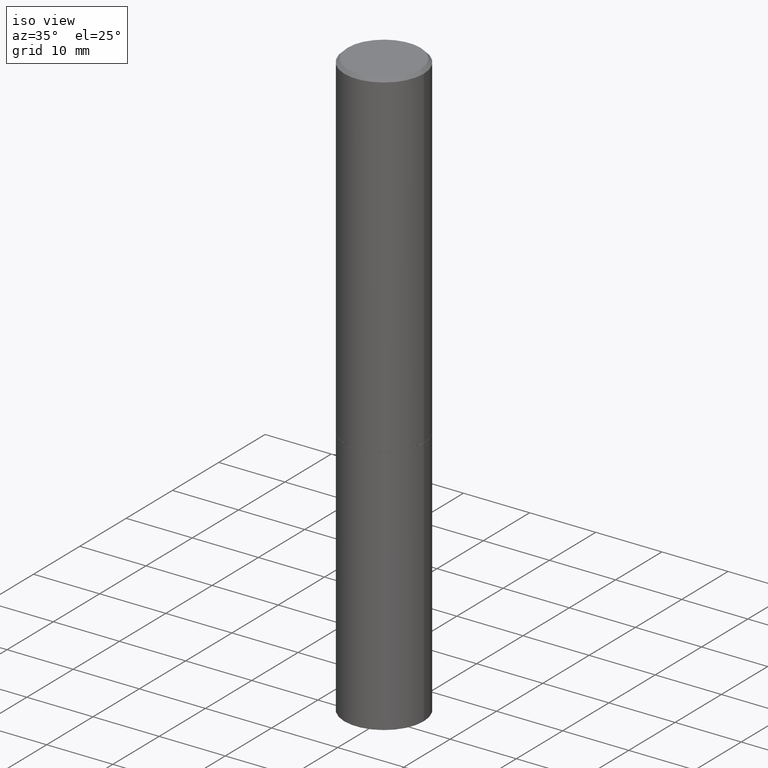
[diagram: clean part render]
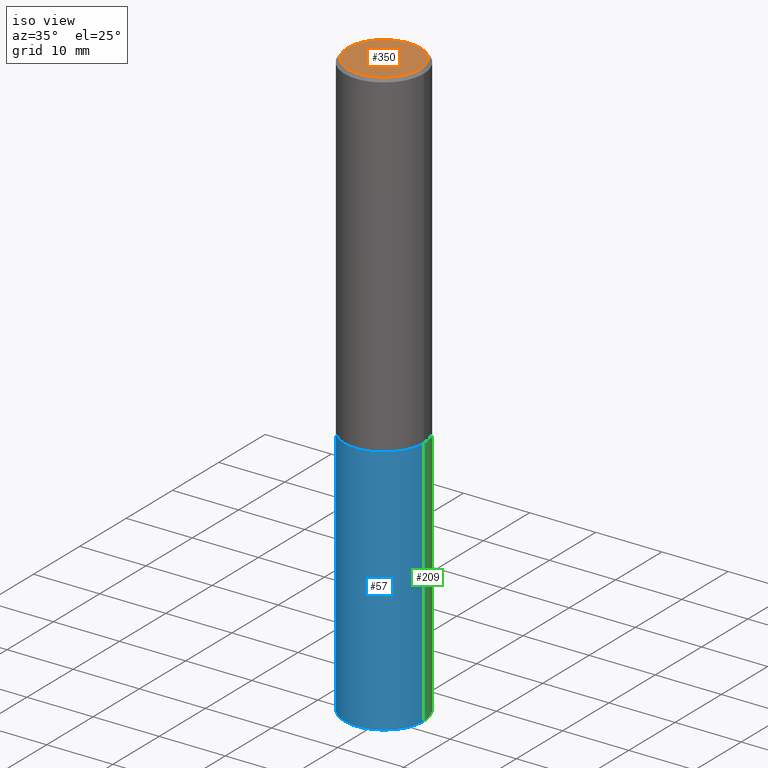
[diagram: same view with three faces highlighted in distinct colors, each labeled with its STEP entity id]
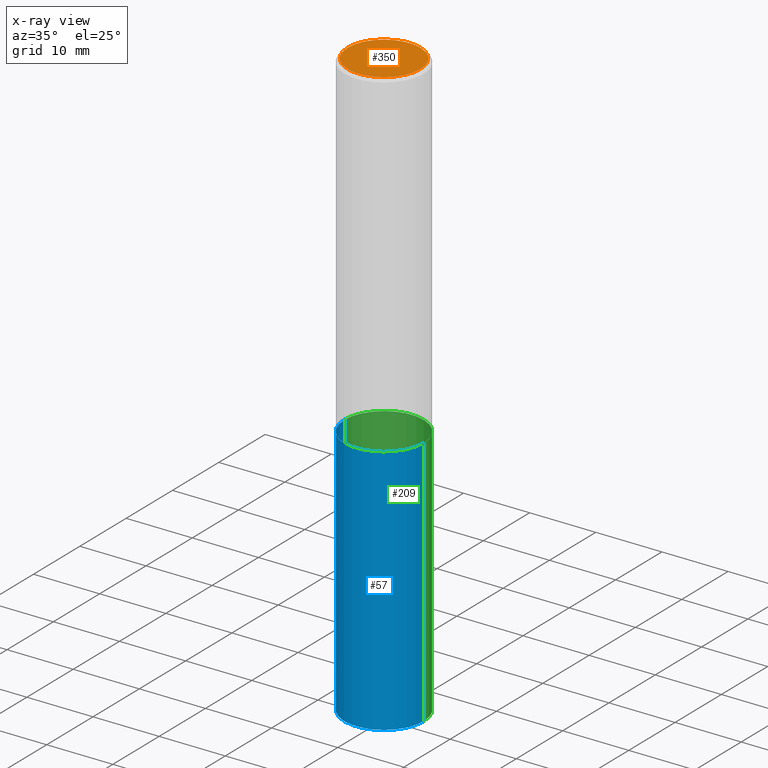
[diagram: x-ray of the same camera — body ghosted, the three highlighted faces saturated]
A machine part, iso view with three faces highlighted in distinct colors.
The next image is the same camera in x-ray (body ghosted, the three faces saturated) — at least one of them is partly hidden behind the body in this view.
Their STEP definitions:

[orange] entity #350 — the highlighted planar face has unit normal (0, -0, -1).
#1 = CIRCLE ( 'NONE', #361, 0.2161999999999997257 ) ;
#30 = AXIS2_PLACEMENT_3D ( 'NONE', #281, #228, #114 ) ;
#49 = CARTESIAN_POINT ( 'NONE',  ( -1.043851414335219820E-46, 1.490343170380447200E-32, 4.268512490100411279E-18 ) ) ;
#71 = DIRECTION ( 'NONE',  ( 1.000000000000000000, -6.982962677686267499E-15, 4.876217060660161841E-29 ) ) ;
#76 = DIRECTION ( 'NONE',  ( -2.445468806185136597E-29, 3.491481338843145583E-15, 1.000000000000000000 ) ) ;
#79 = DIRECTION ( 'NONE',  ( 1.000000000000000000, -6.982962677686267499E-15, 4.876217060660161841E-29 ) ) ;
#80 = DIRECTION ( 'NONE',  ( -2.445468806185136597E-29, 3.491481338843145583E-15, 1.000000000000000000 ) ) ;
#83 = FACE_OUTER_BOUND ( 'NONE', #204, .T. ) ;
#84 = ORIENTED_EDGE ( 'NONE', *, *, #237, .T. ) ;
#94 = AXIS2_PLACEMENT_3D ( 'NONE', #49, #80, #71 ) ;
#114 = DIRECTION ( 'NONE',  ( -1.000000000000000000, 6.982962677686265922E-15, -4.876176775795935793E-29 ) ) ;
#144 = CIRCLE ( 'NONE', #94, 0.2161999999999997257 ) ;
#179 = ORIENTED_EDGE ( 'NONE', *, *, #195, .T. ) ;
#195 = EDGE_CURVE ( 'NONE', #223, #263, #144, .T. ) ;
#204 = EDGE_LOOP ( 'NONE', ( #84, #179 ) ) ;
#218 = CARTESIAN_POINT ( 'NONE',  ( -0.2161999999999997257, 1.544631344304200197E-15, 4.268512490089730842E-18 ) ) ;
#220 = PLANE ( 'NONE',  #30 ) ;
#223 = VERTEX_POINT ( 'NONE', #334 ) ;
#228 = DIRECTION ( 'NONE',  ( 2.438088387897960049E-29, -3.491481338843145188E-15, -1.000000000000000000 ) ) ;
#237 = EDGE_CURVE ( 'NONE', #263, #223, #1, .T. ) ;
#243 = CARTESIAN_POINT ( 'NONE',  ( -1.043851414335219820E-46, 1.490343170380447200E-32, 4.268512490100411279E-18 ) ) ;
#263 = VERTEX_POINT ( 'NONE', #218 ) ;
#281 = CARTESIAN_POINT ( 'NONE',  ( 1.509716530915768746E-15, 0.2161999999999997257, -7.527240092128370190E-16 ) ) ;
#334 = CARTESIAN_POINT ( 'NONE',  ( 0.2161999999999997257, -1.586759460484350016E-15, 4.268512490111238857E-18 ) ) ;
#350 = ADVANCED_FACE ( 'NONE', ( #83 ), #220, .F. ) ;
#361 = AXIS2_PLACEMENT_3D ( 'NONE', #243, #76, #79 ) ;

[blue] entity #57 — the highlighted cylindrical surface (partial cylindrical patch) has radius 5.9995 mm, axis along (-0, 0, 1).
#2 = EDGE_CURVE ( 'NONE', #129, #241, #288, .T. ) ;
#8 = CARTESIAN_POINT ( 'NONE',  ( -0.2361999999999999933, -7.943696905785525451E-15, -3.503899999999999793 ) ) ;
#20 = DIRECTION ( 'NONE',  ( -2.445468806185136597E-29, 3.491481338843145583E-15, 1.000000000000000000 ) ) ;
#38 = FACE_OUTER_BOUND ( 'NONE', #277, .T. ) ;
#39 = AXIS2_PLACEMENT_3D ( 'NONE', #142, #236, #229 ) ;
#47 = CARTESIAN_POINT ( 'NONE',  ( -0.2361999999999999933, -7.943696905785525451E-15, -2.007800000000000029 ) ) ;
#51 = CARTESIAN_POINT ( 'NONE',  ( 0.2361999999999999933, -1.388317724764199281E-14, -3.503899999999999793 ) ) ;
#57 = ADVANCED_FACE ( 'NONE', ( #38 ), #65, .T. ) ;
#59 = VECTOR ( 'NONE', #105, 39.37007874015748143 ) ;
#65 = CYLINDRICAL_SURFACE ( 'NONE', #39, 0.2361999999999999933 ) ;
#66 = VECTOR ( 'NONE', #230, 39.37007874015748143 ) ;
#105 = DIRECTION ( 'NONE',  ( -2.445468806185136877E-29, 3.491481338843145188E-15, 1.000000000000000000 ) ) ;
#113 = CARTESIAN_POINT ( 'NONE',  ( -0.2361999999999999933, 1.678301941865356591E-15, -1.161852468318208757E-29 ) ) ;
#119 = EDGE_CURVE ( 'NONE', #129, #219, #197, .T. ) ;
#121 = ORIENTED_EDGE ( 'NONE', *, *, #287, .F. ) ;
#129 = VERTEX_POINT ( 'NONE', #8 ) ;
#142 = CARTESIAN_POINT ( 'NONE',  ( 0.000000000000000000, 0.000000000000000000, 0.000000000000000000 ) ) ;
#157 = CARTESIAN_POINT ( 'NONE',  ( 0.2361999999999999933, -8.659572016598763935E-15, -2.007800000000000029 ) ) ;
#172 = CARTESIAN_POINT ( 'NONE',  ( 8.568678149992099474E-29, -1.223380146317249786E-14, -3.503899999999999793 ) ) ;
#192 = ORIENTED_EDGE ( 'NONE', *, *, #119, .F. ) ;
#197 = LINE ( 'NONE', #113, #66 ) ;
#219 = VERTEX_POINT ( 'NONE', #47 ) ;
#221 = CIRCLE ( 'NONE', #251, 0.2361999999999999933 ) ;
#229 = DIRECTION ( 'NONE',  ( 1.000000000000000000, -6.982962677686266711E-15, 4.876176775795936353E-29 ) ) ;
#230 = DIRECTION ( 'NONE',  ( -2.445468806185136877E-29, 3.491481338843145188E-15, 1.000000000000000000 ) ) ;
#236 = DIRECTION ( 'NONE',  ( -2.445468806185136597E-29, 3.491481338843145583E-15, 1.000000000000000000 ) ) ;
#241 = VERTEX_POINT ( 'NONE', #51 ) ;
#251 = AXIS2_PLACEMENT_3D ( 'NONE', #360, #20, #349 ) ;
#276 = CARTESIAN_POINT ( 'NONE',  ( 0.2361999999999999933, -1.649375784469496131E-15, 1.151752954443000088E-29 ) ) ;
#277 = EDGE_LOOP ( 'NONE', ( #192, #302, #366, #121 ) ) ;
#287 = EDGE_CURVE ( 'NONE', #219, #294, #221, .T. ) ;
#288 = CIRCLE ( 'NONE', #362, 0.2361999999999999933 ) ;
#294 = VERTEX_POINT ( 'NONE', #157 ) ;
#302 = ORIENTED_EDGE ( 'NONE', *, *, #2, .T. ) ;
#310 = LINE ( 'NONE', #276, #59 ) ;
#315 = DIRECTION ( 'NONE',  ( -2.445468806185136597E-29, 3.491481338843145583E-15, 1.000000000000000000 ) ) ;
#317 = DIRECTION ( 'NONE',  ( 1.000000000000000000, -6.982962677686265133E-15, 0.000000000000000000 ) ) ;
#333 = EDGE_CURVE ( 'NONE', #241, #294, #310, .T. ) ;
#349 = DIRECTION ( 'NONE',  ( 1.000000000000000000, -6.982962677686269077E-15, 0.000000000000000000 ) ) ;
#360 = CARTESIAN_POINT ( 'NONE',  ( 4.910012269058516525E-29, -7.010196232129267410E-15, -2.007800000000000029 ) ) ;
#362 = AXIS2_PLACEMENT_3D ( 'NONE', #172, #315, #317 ) ;
#366 = ORIENTED_EDGE ( 'NONE', *, *, #333, .T. ) ;

[green] entity #209 — the highlighted cylindrical surface (partial cylindrical patch) has radius 5.9995 mm, axis along (-0, 0, 1).
#8 = CARTESIAN_POINT ( 'NONE',  ( -0.2361999999999999933, -7.943696905785525451E-15, -3.503899999999999793 ) ) ;
#33 = EDGE_CURVE ( 'NONE', #241, #129, #117, .T. ) ;
#47 = CARTESIAN_POINT ( 'NONE',  ( -0.2361999999999999933, -7.943696905785525451E-15, -2.007800000000000029 ) ) ;
#51 = CARTESIAN_POINT ( 'NONE',  ( 0.2361999999999999933, -1.388317724764199281E-14, -3.503899999999999793 ) ) ;
#59 = VECTOR ( 'NONE', #105, 39.37007874015748143 ) ;
#66 = VECTOR ( 'NONE', #230, 39.37007874015748143 ) ;
#105 = DIRECTION ( 'NONE',  ( -2.445468806185136877E-29, 3.491481338843145188E-15, 1.000000000000000000 ) ) ;
#106 = ORIENTED_EDGE ( 'NONE', *, *, #33, .T. ) ;
#113 = CARTESIAN_POINT ( 'NONE',  ( -0.2361999999999999933, 1.678301941865356591E-15, -1.161852468318208757E-29 ) ) ;
#117 = CIRCLE ( 'NONE', #255, 0.2361999999999999933 ) ;
#119 = EDGE_CURVE ( 'NONE', #129, #219, #197, .T. ) ;
#129 = VERTEX_POINT ( 'NONE', #8 ) ;
#141 = DIRECTION ( 'NONE',  ( 1.000000000000000000, -6.982962677686265133E-15, 0.000000000000000000 ) ) ;
#148 = ORIENTED_EDGE ( 'NONE', *, *, #225, .F. ) ;
#152 = CIRCLE ( 'NONE', #335, 0.2361999999999999933 ) ;
#157 = CARTESIAN_POINT ( 'NONE',  ( 0.2361999999999999933, -8.659572016598763935E-15, -2.007800000000000029 ) ) ;
#158 = ORIENTED_EDGE ( 'NONE', *, *, #333, .F. ) ;
#160 = CARTESIAN_POINT ( 'NONE',  ( 4.910012269058516525E-29, -7.010196232129267410E-15, -2.007800000000000029 ) ) ;
#166 = DIRECTION ( 'NONE',  ( -2.445468806185136597E-29, 3.491481338843145583E-15, 1.000000000000000000 ) ) ;
#181 = FACE_OUTER_BOUND ( 'NONE', #216, .T. ) ;
#197 = LINE ( 'NONE', #113, #66 ) ;
#209 = ADVANCED_FACE ( 'NONE', ( #181 ), #293, .T. ) ;
#212 = DIRECTION ( 'NONE',  ( 1.000000000000000000, -6.982962677686269077E-15, 0.000000000000000000 ) ) ;
#215 = DIRECTION ( 'NONE',  ( -2.445468806185136597E-29, 3.491481338843145583E-15, 1.000000000000000000 ) ) ;
#216 = EDGE_LOOP ( 'NONE', ( #106, #346, #148, #158 ) ) ;
#219 = VERTEX_POINT ( 'NONE', #47 ) ;
#225 = EDGE_CURVE ( 'NONE', #294, #219, #152, .T. ) ;
#230 = DIRECTION ( 'NONE',  ( -2.445468806185136877E-29, 3.491481338843145188E-15, 1.000000000000000000 ) ) ;
#241 = VERTEX_POINT ( 'NONE', #51 ) ;
#255 = AXIS2_PLACEMENT_3D ( 'NONE', #342, #284, #141 ) ;
#276 = CARTESIAN_POINT ( 'NONE',  ( 0.2361999999999999933, -1.649375784469496131E-15, 1.151752954443000088E-29 ) ) ;
#284 = DIRECTION ( 'NONE',  ( -2.445468806185136597E-29, 3.491481338843145583E-15, 1.000000000000000000 ) ) ;
#293 = CYLINDRICAL_SURFACE ( 'NONE', #318, 0.2361999999999999933 ) ;
#294 = VERTEX_POINT ( 'NONE', #157 ) ;
#310 = LINE ( 'NONE', #276, #59 ) ;
#318 = AXIS2_PLACEMENT_3D ( 'NONE', #328, #215, #332 ) ;
#328 = CARTESIAN_POINT ( 'NONE',  ( 0.000000000000000000, 0.000000000000000000, 0.000000000000000000 ) ) ;
#332 = DIRECTION ( 'NONE',  ( 1.000000000000000000, -6.982962677686266711E-15, 4.876176775795936353E-29 ) ) ;
#333 = EDGE_CURVE ( 'NONE', #241, #294, #310, .T. ) ;
#335 = AXIS2_PLACEMENT_3D ( 'NONE', #160, #166, #212 ) ;
#342 = CARTESIAN_POINT ( 'NONE',  ( 8.568678149992099474E-29, -1.223380146317249786E-14, -3.503899999999999793 ) ) ;
#346 = ORIENTED_EDGE ( 'NONE', *, *, #119, .T. ) ;